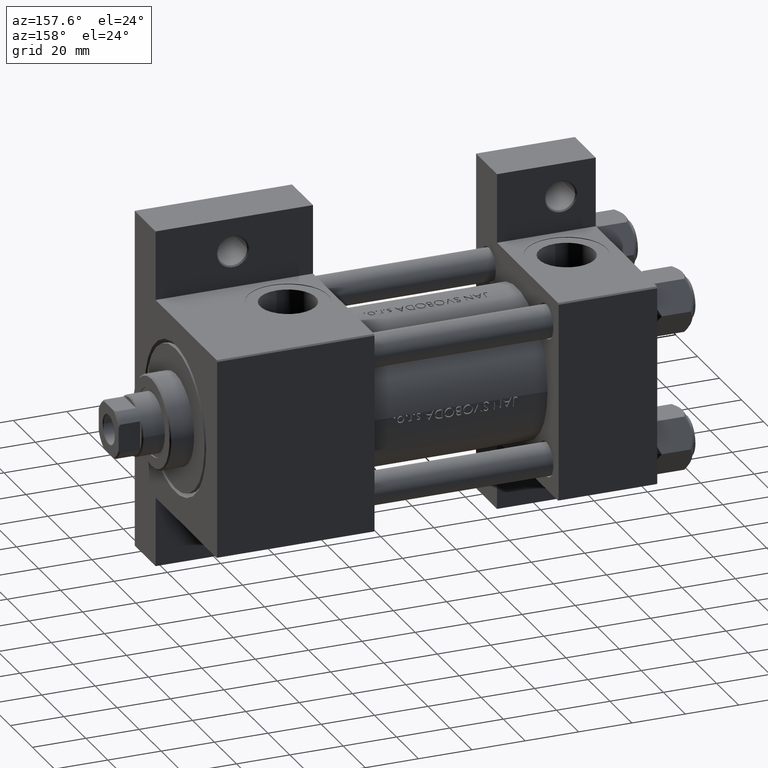
[diagram: clean part render]
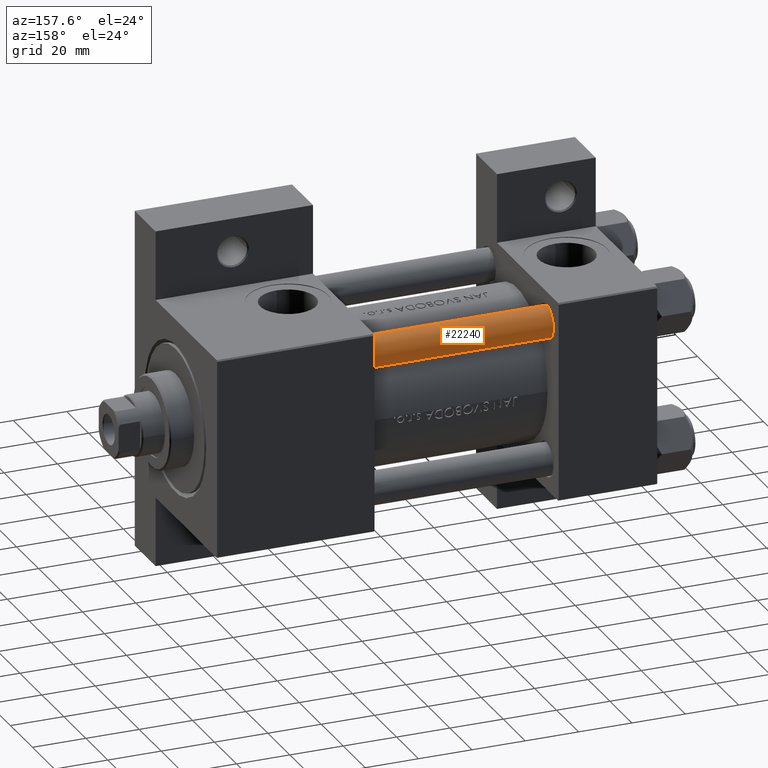
[diagram: same view with one face highlighted and labeled with its STEP entity id]
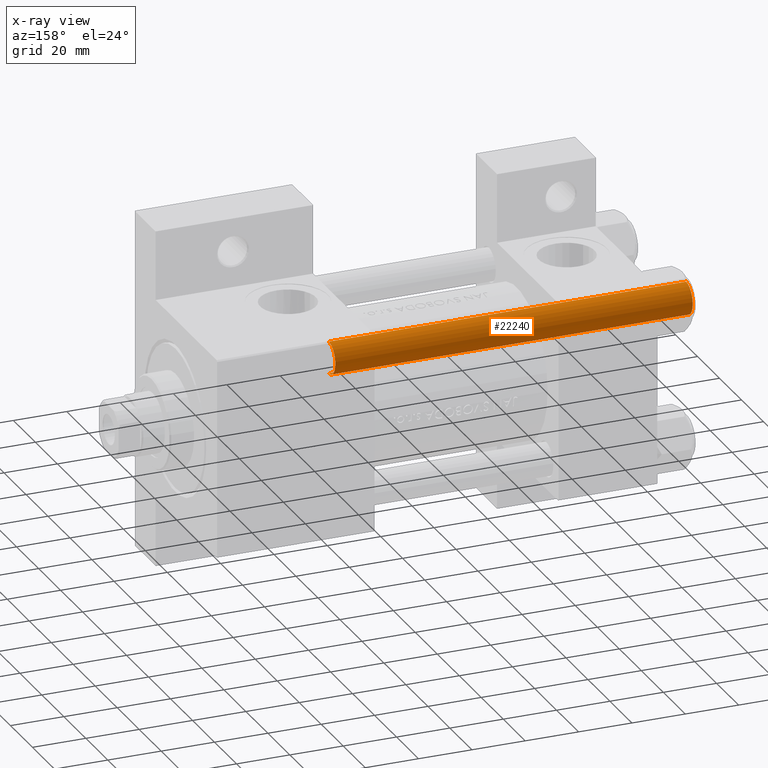
[diagram: x-ray of the same camera — body ghosted, the highlighted face saturated]
A machine part, auxiliary view. The second image highlights one B-rep face of the part: STEP entity #22240.
The next image is the same camera in x-ray: the body ghosted, the highlighted face saturated — about 0% of this face is hidden behind the body in this view.
In plain terms, the highlighted cylindrical surface (edge-blend (fillet) strip) has radius 6 mm, axis along (-1, -0, -0).
Its self-contained STEP definition (entity closure, byte-faithful):
#1357 = LINE ( 'NONE', #16528, #40857 ) ;
#1678 = VERTEX_POINT ( 'NONE', #41872 ) ;
#3216 = DIRECTION ( 'NONE',  ( -0.000000000000000000, -0.000000000000000000, 1.000000000000000000 ) ) ;
#4129 = VERTEX_POINT ( 'NONE', #25288 ) ;
#4555 = CYLINDRICAL_SURFACE ( 'NONE', #47625, 6.000000000000000888 ) ;
#4713 = FACE_OUTER_BOUND ( 'NONE', #44249, .T. ) ;
#5590 = DIRECTION ( 'NONE',  ( 1.000000000000000000, 0.000000000000000000, 0.000000000000000000 ) ) ;
#5771 = VECTOR ( 'NONE', #25063, 1000.000000000000000 ) ;
#8356 = AXIS2_PLACEMENT_3D ( 'NONE', #25873, #3216, #14663 ) ;
#9297 = EDGE_CURVE ( 'NONE', #4129, #1678, #12345, .T. ) ;
#11423 = DIRECTION ( 'NONE',  ( -1.000000000000000000, 0.000000000000000000, 0.000000000000000000 ) ) ;
#12345 = CIRCLE ( 'NONE', #8356, 6.000000000000000888 ) ;
#14663 = DIRECTION ( 'NONE',  ( 1.000000000000000000, 0.000000000000000000, 0.000000000000000000 ) ) ;
#15980 = ORIENTED_EDGE ( 'NONE', *, *, #9297, .T. ) ;
#16528 = CARTESIAN_POINT ( 'NONE',  ( -6.000000000000000888, 0.000000000000000000, 135.0000000000000000 ) ) ;
#17587 = VERTEX_POINT ( 'NONE', #45992 ) ;
#21281 = DIRECTION ( 'NONE',  ( 0.000000000000000000, 0.000000000000000000, -1.000000000000000000 ) ) ;
#22240 = ADVANCED_FACE ( 'NONE', ( #4713 ), #4555, .T. ) ;
#23139 = DIRECTION ( 'NONE',  ( -0.000000000000000000, -0.000000000000000000, -1.000000000000000000 ) ) ;
#24390 = ORIENTED_EDGE ( 'NONE', *, *, #41419, .F. ) ;
#25063 = DIRECTION ( 'NONE',  ( -0.000000000000000000, -0.000000000000000000, -1.000000000000000000 ) ) ;
#25288 = CARTESIAN_POINT ( 'NONE',  ( 6.000000000000000888, 7.347880794884120722E-16, 0.5000000000000281997 ) ) ;
#25556 = LINE ( 'NONE', #48720, #5771 ) ;
#25873 = CARTESIAN_POINT ( 'NONE',  ( 0.000000000000000000, 0.000000000000000000, 0.5000000000000281997 ) ) ;
#27159 = AXIS2_PLACEMENT_3D ( 'NONE', #40204, #21281, #5590 ) ;
#27973 = VERTEX_POINT ( 'NONE', #42332 ) ;
#28839 = EDGE_CURVE ( 'NONE', #17587, #27973, #31928, .T. ) ;
#30847 = CARTESIAN_POINT ( 'NONE',  ( 0.000000000000000000, 0.000000000000000000, 135.0000000000000000 ) ) ;
#31928 = CIRCLE ( 'NONE', #27159, 6.000000000000000888 ) ;
#34586 = EDGE_CURVE ( 'NONE', #27973, #4129, #25556, .T. ) ;
#36813 = ORIENTED_EDGE ( 'NONE', *, *, #34586, .T. ) ;
#40204 = CARTESIAN_POINT ( 'NONE',  ( 0.000000000000000000, 0.000000000000000000, 134.5000000000000000 ) ) ;
#40857 = VECTOR ( 'NONE', #47159, 1000.000000000000000 ) ;
#41419 = EDGE_CURVE ( 'NONE', #17587, #1678, #1357, .T. ) ;
#41872 = CARTESIAN_POINT ( 'NONE',  ( -6.000000000000000888, 0.000000000000000000, 0.5000000000000281997 ) ) ;
#42332 = CARTESIAN_POINT ( 'NONE',  ( 6.000000000000000888, 7.347880794884120722E-16, 134.5000000000000000 ) ) ;
#44249 = EDGE_LOOP ( 'NONE', ( #45074, #36813, #15980, #24390 ) ) ;
#45074 = ORIENTED_EDGE ( 'NONE', *, *, #28839, .T. ) ;
#45992 = CARTESIAN_POINT ( 'NONE',  ( -6.000000000000000888, 0.000000000000000000, 134.5000000000000000 ) ) ;
#47159 = DIRECTION ( 'NONE',  ( -0.000000000000000000, -0.000000000000000000, -1.000000000000000000 ) ) ;
#47625 = AXIS2_PLACEMENT_3D ( 'NONE', #30847, #23139, #11423 ) ;
#48720 = CARTESIAN_POINT ( 'NONE',  ( 6.000000000000000888, 7.347880794884120722E-16, 135.0000000000000000 ) ) ;